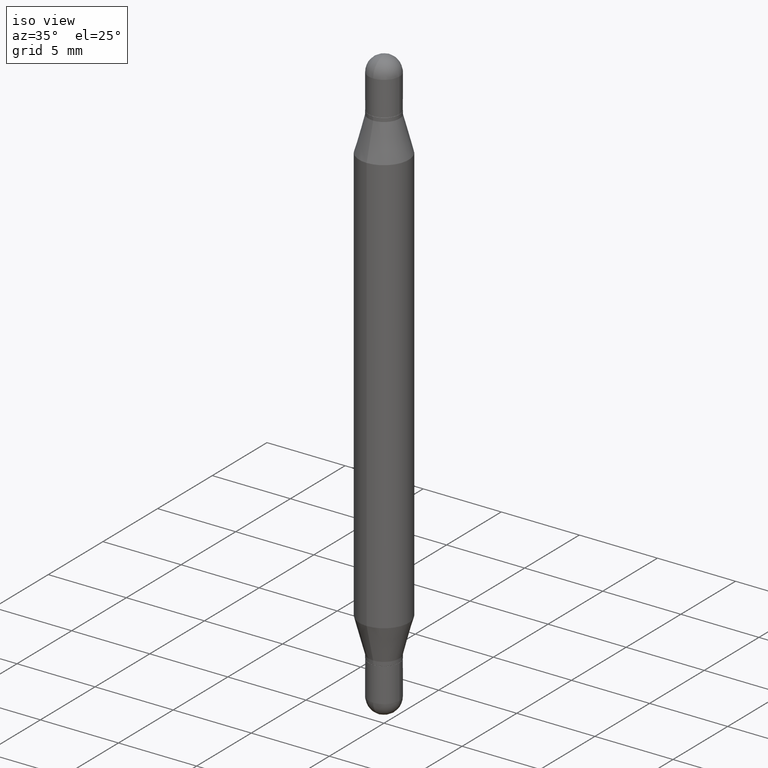
[diagram: clean part render]
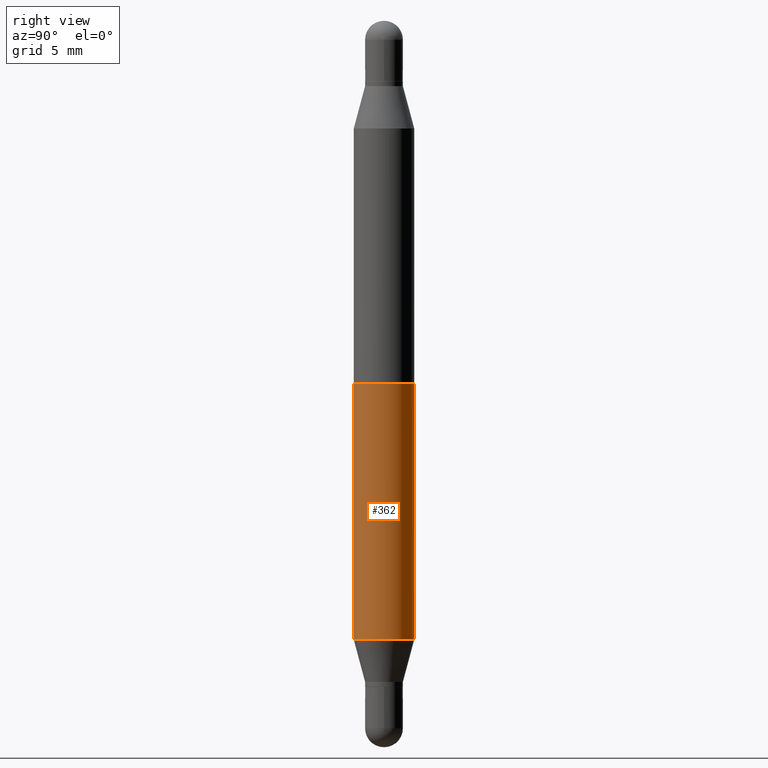
[diagram: tour spotlight — one face highlighted and labeled with its STEP entity id]
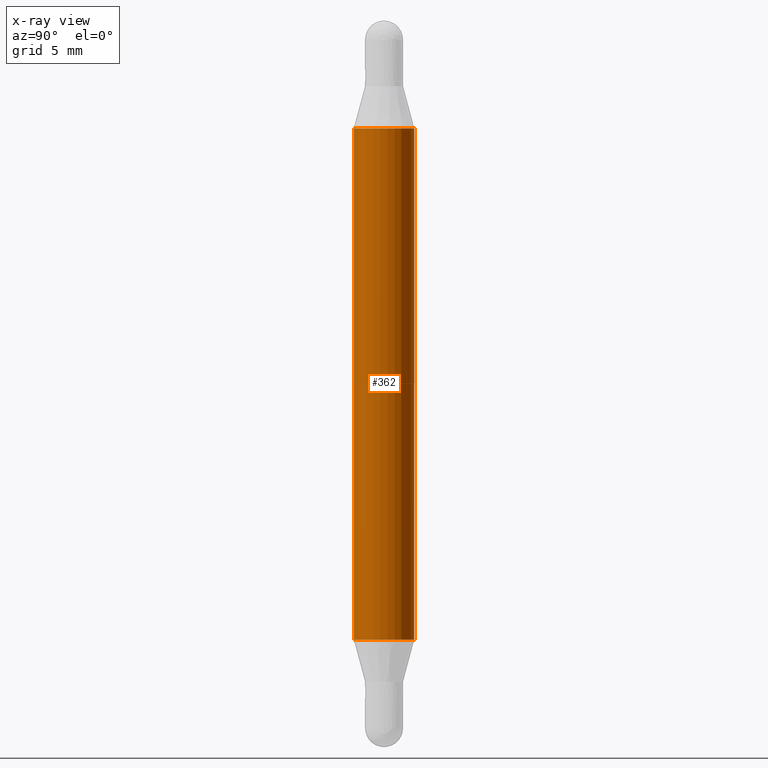
[diagram: x-ray of the same camera — body ghosted, this tour face saturated]
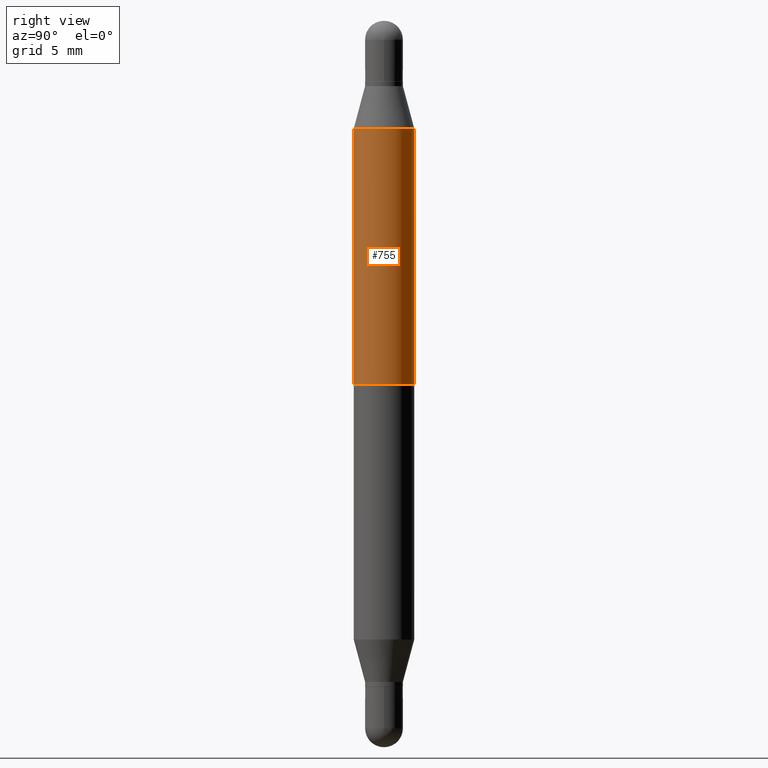
[diagram: tour spotlight — one face highlighted and labeled with its STEP entity id]
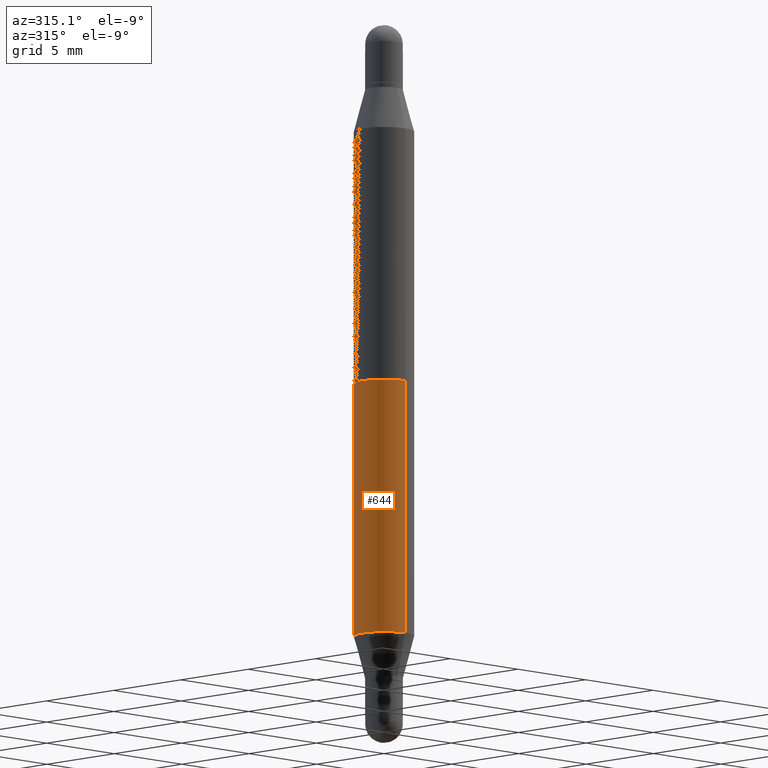
[diagram: tour spotlight — one face highlighted and labeled with its STEP entity id]
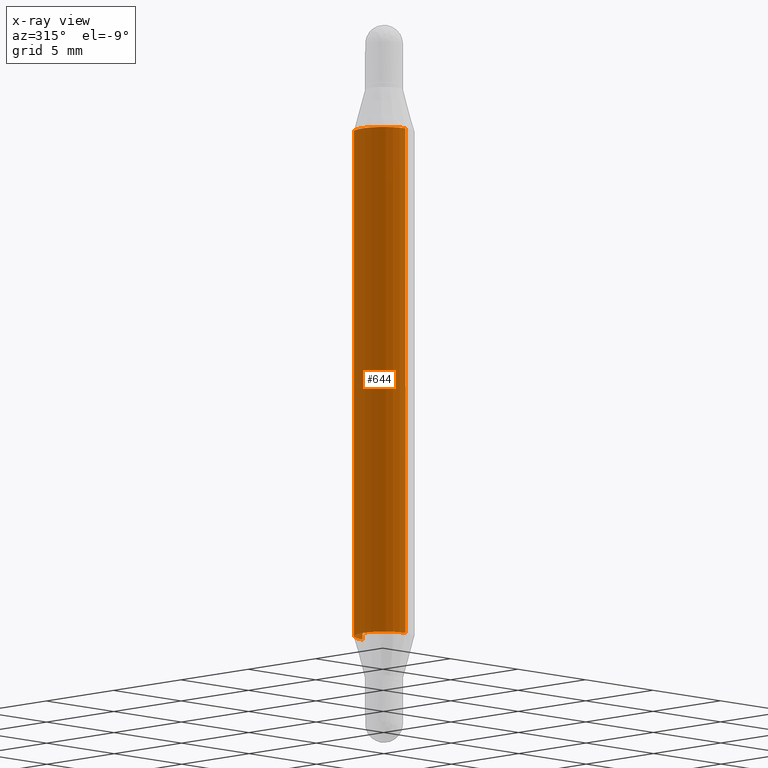
[diagram: x-ray of the same camera — body ghosted, this tour face saturated]
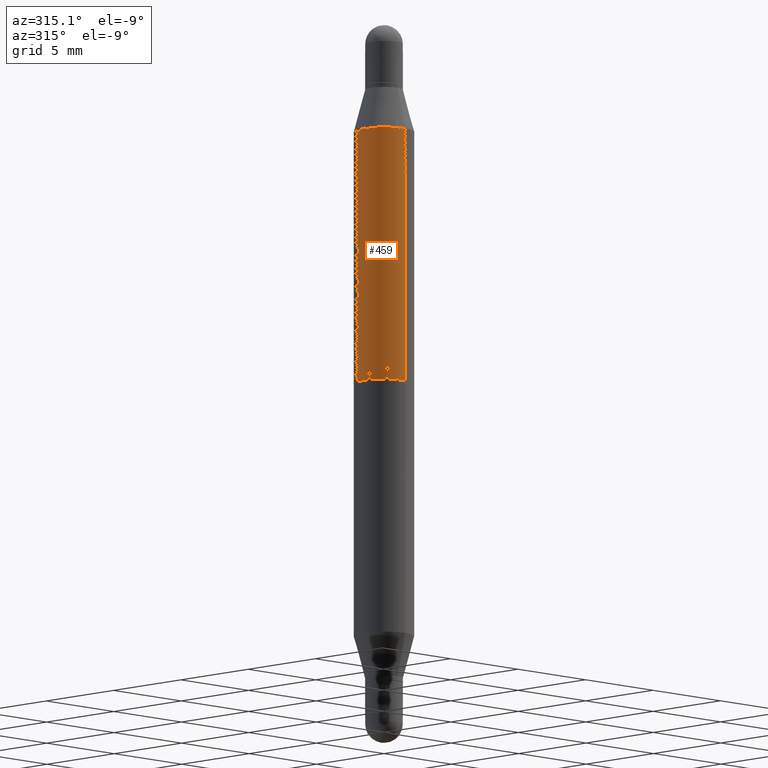
[diagram: tour spotlight — one face highlighted and labeled with its STEP entity id]
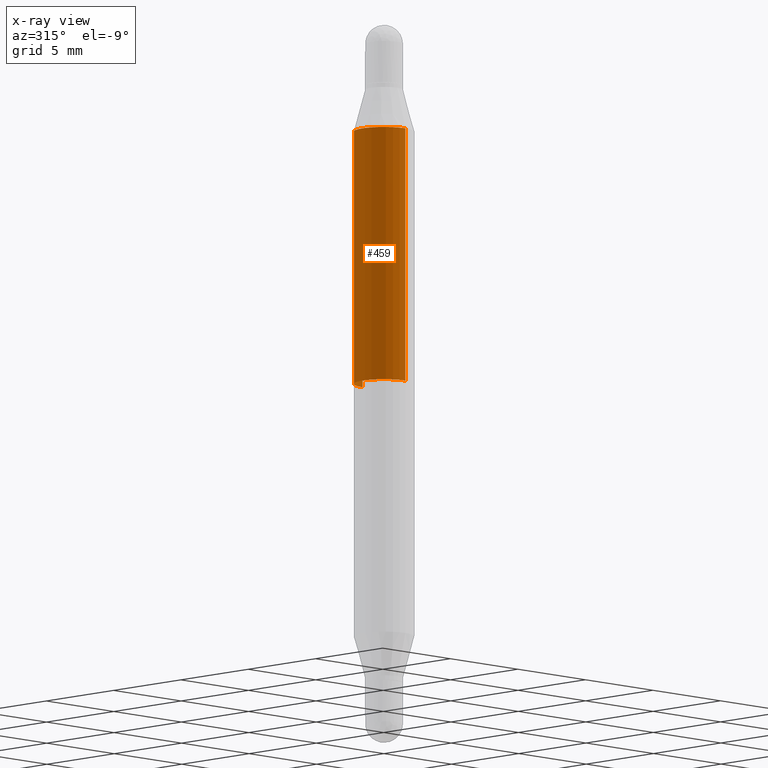
[diagram: x-ray of the same camera — body ghosted, this tour face saturated]
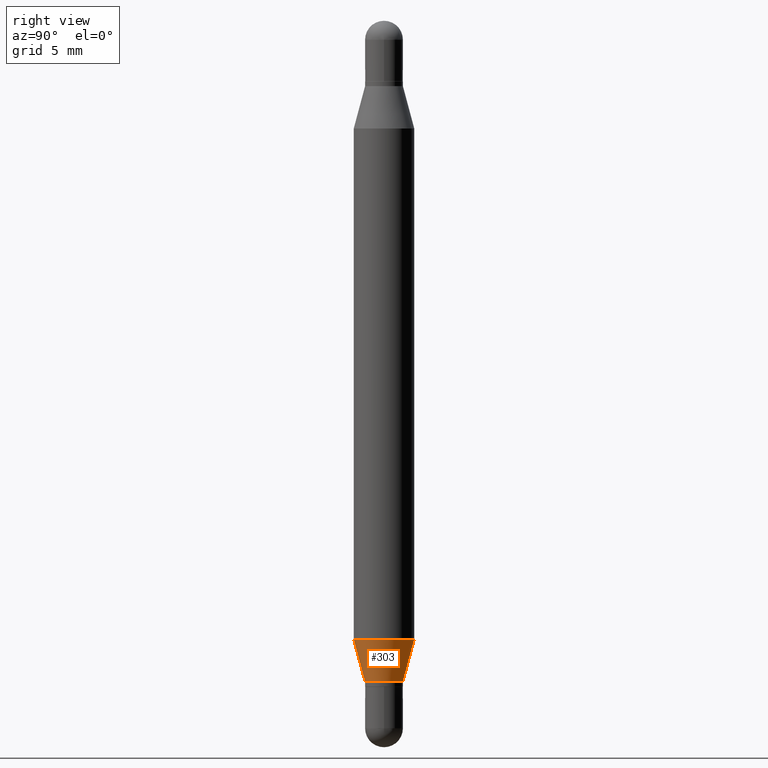
[diagram: tour spotlight — one face highlighted and labeled with its STEP entity id]
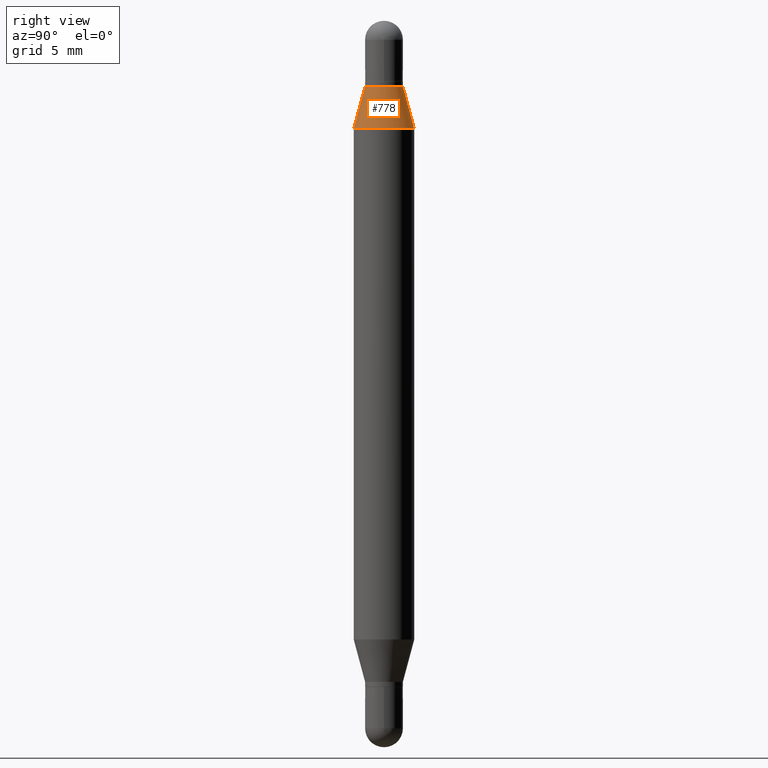
[diagram: tour spotlight — one face highlighted and labeled with its STEP entity id]
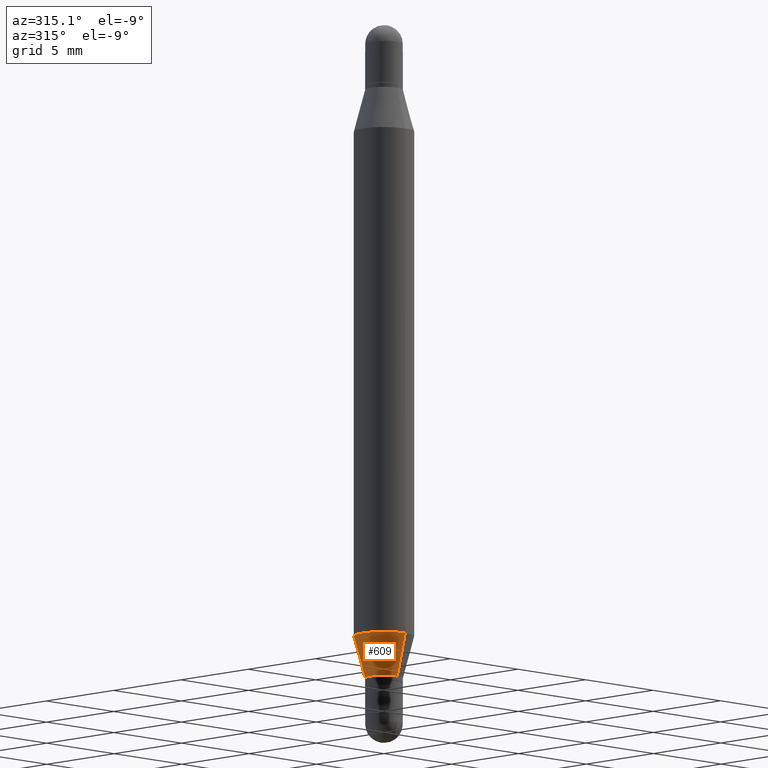
[diagram: tour spotlight — one face highlighted and labeled with its STEP entity id]
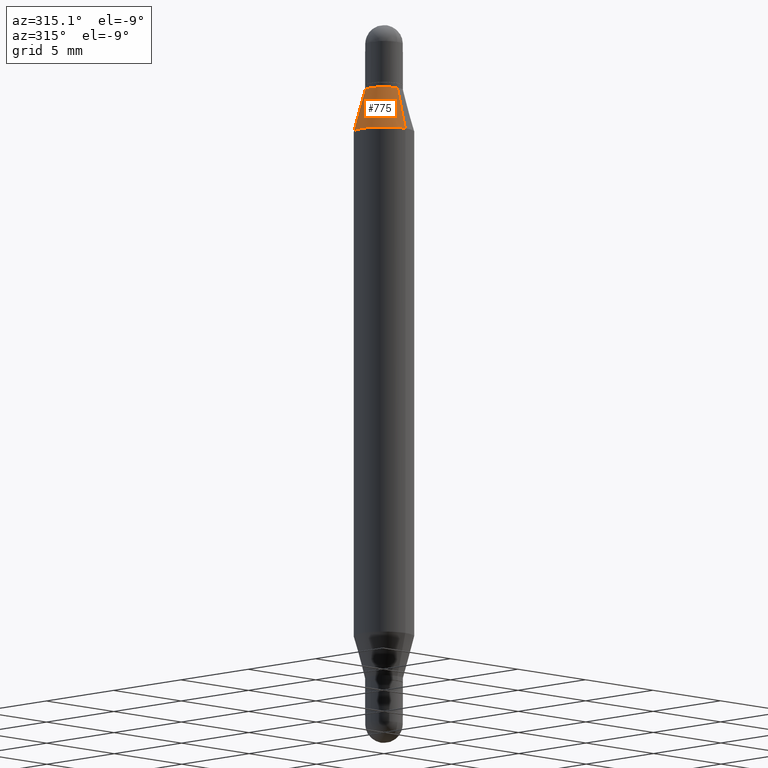
[diagram: tour spotlight — one face highlighted and labeled with its STEP entity id]
A machine part: a face-by-face anatomy tour. The part has 41 B-rep faces; the first image is the clean iso view, then the 8 largest visible faces are spotlighted one at a time (largest first), each with its STEP entity span.

Face 1 — right view, entity #362. An x-ray twin of the same camera follows (body ghosted, this face saturated) — the face is partly hidden behind the body. In plain terms, the highlighted cylindrical surface (edge-blend (fillet) strip) has radius 1.5875 mm, axis along (-0, -0, -1).
Definition (entity closure, byte-faithful):
#1 = EDGE_CURVE ( 'NONE', #389, #839, #751, .T. ) ;
#51 = ORIENTED_EDGE ( 'NONE', *, *, #498, .F. ) ;
#117 = AXIS2_PLACEMENT_3D ( 'NONE', #212, #302, #1100 ) ;
#125 = CARTESIAN_POINT ( 'NONE',  ( 4.287811248607390637E-16, 0.06249999999999554523, -1.277483408562510192 ) ) ;
#206 = LINE ( 'NONE', #1056, #719 ) ;
#212 = CARTESIAN_POINT ( 'NONE',  ( 0.000000000000000000, -5.228321854365729194E-15, -1.499999999999999556 ) ) ;
#240 = CARTESIAN_POINT ( 'NONE',  ( 3.124066175503445420E-29, -4.460280340114615090E-15, -1.277483408562509970 ) ) ;
#249 = ORIENTED_EDGE ( 'NONE', *, *, #1, .T. ) ;
#296 = VERTEX_POINT ( 'NONE', #995 ) ;
#301 = CARTESIAN_POINT ( 'NONE',  ( 4.287811248607206733E-16, 0.06249999999999477501, -1.499999999999999778 ) ) ;
#302 = DIRECTION ( 'NONE',  ( -2.445484735507293493E-29, -3.479637278673797391E-15, -1.000000000000000000 ) ) ;
#324 = FACE_OUTER_BOUND ( 'NONE', #366, .T. ) ;
#328 = CIRCLE ( 'NONE', #1111, 0.06250000000000000000 ) ;
#329 = AXIS2_PLACEMENT_3D ( 'NONE', #240, #487, #1099 ) ;
#352 = DIRECTION ( 'NONE',  ( -2.445484735507293493E-29, -3.479637278673797391E-15, -1.000000000000000000 ) ) ;
#362 = ADVANCED_FACE ( 'NONE', ( #324 ), #1073, .T. ) ;
#366 = EDGE_LOOP ( 'NONE', ( #993, #51, #855, #249 ) ) ;
#389 = VERTEX_POINT ( 'NONE', #988 ) ;
#487 = DIRECTION ( 'NONE',  ( -2.445484735507293493E-29, 3.491458527147176446E-15, 1.000000000000000000 ) ) ;
#495 = DIRECTION ( 'NONE',  ( 2.445484735507293493E-29, 3.479637278673797391E-15, 1.000000000000000000 ) ) ;
#498 = EDGE_CURVE ( 'NONE', #296, #835, #328, .T. ) ;
#594 = EDGE_CURVE ( 'NONE', #296, #389, #206, .T. ) ;
#635 = DIRECTION ( 'NONE',  ( -2.445484735507293493E-29, -3.479637278673797391E-15, -1.000000000000000000 ) ) ;
#677 = DIRECTION ( 'NONE',  ( -6.982962677686265922E-15, -1.000000000000000000, 3.278217592397115862E-15 ) ) ;
#719 = VECTOR ( 'NONE', #352, 39.37007874015748143 ) ;
#720 = LINE ( 'NONE', #301, #1053 ) ;
#751 = CIRCLE ( 'NONE', #329, 0.06250000000000000000 ) ;
#767 = CARTESIAN_POINT ( 'NONE',  ( 3.124066175503445420E-29, -7.831429630443502139E-16, -0.2225165914374896692 ) ) ;
#822 = EDGE_CURVE ( 'NONE', #835, #839, #720, .T. ) ;
#835 = VERTEX_POINT ( 'NONE', #898 ) ;
#839 = VERTEX_POINT ( 'NONE', #125 ) ;
#855 = ORIENTED_EDGE ( 'NONE', *, *, #594, .T. ) ;
#898 = CARTESIAN_POINT ( 'NONE',  ( 4.287811248607519320E-16, 0.06249999999999921590, -0.2225165914374898912 ) ) ;
#988 = CARTESIAN_POINT ( 'NONE',  ( -4.364351673553603615E-16, -0.06250000000000445477, -1.277483408562509526 ) ) ;
#993 = ORIENTED_EDGE ( 'NONE', *, *, #822, .F. ) ;
#995 = CARTESIAN_POINT ( 'NONE',  ( -4.364351673553603122E-16, -0.06250000000000079103, -0.2225165914374894749 ) ) ;
#1053 = VECTOR ( 'NONE', #635, 39.37007874015748143 ) ;
#1056 = CARTESIAN_POINT ( 'NONE',  ( -4.364351673553916201E-16, -0.06250000000000521805, -1.499999999999999334 ) ) ;
#1073 = CYLINDRICAL_SURFACE ( 'NONE', #117, 0.06250000000000000000 ) ;
#1099 = DIRECTION ( 'NONE',  ( -6.982962677686265922E-15, -1.000000000000000000, 4.370956789862821150E-15 ) ) ;
#1100 = DIRECTION ( 'NONE',  ( -6.982962677686265922E-15, -1.000000000000000000, 4.370956789862821150E-15 ) ) ;
#1111 = AXIS2_PLACEMENT_3D ( 'NONE', #767, #495, #677 ) ;

Face 2 — right view, entity #755. In plain terms, the highlighted cylindrical surface (edge-blend (fillet) strip) has radius 1.5875 mm, axis along (-0, -0, -1).
Definition (entity closure, byte-faithful):
#89 = VERTEX_POINT ( 'NONE', #664 ) ;
#106 = CARTESIAN_POINT ( 'NONE',  ( 4.287811248607519320E-16, 0.06249999999999921590, -0.2225165914374898912 ) ) ;
#126 = DIRECTION ( 'NONE',  ( -6.982962677686265922E-15, -1.000000000000000000, 3.278217592397115862E-15 ) ) ;
#132 = AXIS2_PLACEMENT_3D ( 'NONE', #1110, #944, #246 ) ;
#150 = ORIENTED_EDGE ( 'NONE', *, *, #599, .T. ) ;
#158 = VERTEX_POINT ( 'NONE', #106 ) ;
#209 = CIRCLE ( 'NONE', #132, 0.06250000000000000000 ) ;
#226 = AXIS2_PLACEMENT_3D ( 'NONE', #809, #308, #569 ) ;
#246 = DIRECTION ( 'NONE',  ( 0.000000000000000000, 1.000000000000000000, -4.370956789862821150E-15 ) ) ;
#278 = VECTOR ( 'NONE', #687, 39.37007874015748143 ) ;
#289 = CARTESIAN_POINT ( 'NONE',  ( -4.364351673553916201E-16, -0.06250000000000521805, -1.499999999999999334 ) ) ;
#308 = DIRECTION ( 'NONE',  ( -2.445484735507293493E-29, -3.479637278673797391E-15, -1.000000000000000000 ) ) ;
#310 = CARTESIAN_POINT ( 'NONE',  ( 3.124066175503445420E-29, -7.831429630443502139E-16, -0.2225165914374896692 ) ) ;
#359 = EDGE_CURVE ( 'NONE', #1009, #158, #1055, .T. ) ;
#392 = EDGE_CURVE ( 'NONE', #158, #89, #461, .T. ) ;
#461 = LINE ( 'NONE', #824, #561 ) ;
#546 = DIRECTION ( 'NONE',  ( -2.445484735507293493E-29, -3.479637278673797391E-15, -1.000000000000000000 ) ) ;
#549 = CARTESIAN_POINT ( 'NONE',  ( -4.364351673553731805E-16, -0.06250000000000262290, -0.7499999999999995559 ) ) ;
#551 = EDGE_LOOP ( 'NONE', ( #735, #1095, #150, #700 ) ) ;
#561 = VECTOR ( 'NONE', #546, 39.37007874015748143 ) ;
#569 = DIRECTION ( 'NONE',  ( -6.982962677686265922E-15, -1.000000000000000000, 4.370956789862821150E-15 ) ) ;
#599 = EDGE_CURVE ( 'NONE', #1009, #818, #799, .T. ) ;
#664 = CARTESIAN_POINT ( 'NONE',  ( 4.287811248607454732E-16, 0.06249999999999737710, -0.7500000000000001110 ) ) ;
#687 = DIRECTION ( 'NONE',  ( -2.445484735507293493E-29, -3.479637278673797391E-15, -1.000000000000000000 ) ) ;
#700 = ORIENTED_EDGE ( 'NONE', *, *, #985, .F. ) ;
#735 = ORIENTED_EDGE ( 'NONE', *, *, #392, .F. ) ;
#755 = ADVANCED_FACE ( 'NONE', ( #821 ), #1092, .T. ) ;
#799 = LINE ( 'NONE', #289, #278 ) ;
#809 = CARTESIAN_POINT ( 'NONE',  ( 0.000000000000000000, -5.228321854365729194E-15, -1.499999999999999556 ) ) ;
#818 = VERTEX_POINT ( 'NONE', #549 ) ;
#821 = FACE_OUTER_BOUND ( 'NONE', #551, .T. ) ;
#824 = CARTESIAN_POINT ( 'NONE',  ( 4.287811248607206733E-16, 0.06249999999999477501, -1.499999999999999778 ) ) ;
#828 = CARTESIAN_POINT ( 'NONE',  ( -4.364351673553603122E-16, -0.06250000000000079103, -0.2225165914374894749 ) ) ;
#899 = DIRECTION ( 'NONE',  ( 2.445484735507293493E-29, 3.479637278673797391E-15, 1.000000000000000000 ) ) ;
#944 = DIRECTION ( 'NONE',  ( -0.000000000000000000, -3.485547902910486918E-15, -1.000000000000000000 ) ) ;
#985 = EDGE_CURVE ( 'NONE', #89, #818, #209, .T. ) ;
#987 = AXIS2_PLACEMENT_3D ( 'NONE', #310, #899, #126 ) ;
#1009 = VERTEX_POINT ( 'NONE', #828 ) ;
#1055 = CIRCLE ( 'NONE', #987, 0.06250000000000000000 ) ;
#1092 = CYLINDRICAL_SURFACE ( 'NONE', #226, 0.06250000000000000000 ) ;
#1095 = ORIENTED_EDGE ( 'NONE', *, *, #359, .F. ) ;
#1110 = CARTESIAN_POINT ( 'NONE',  ( 1.834113551630469349E-29, -2.618593895360381940E-15, -0.7499999999999997780 ) ) ;

Face 3 — auxiliary view, entity #644. An x-ray twin of the same camera follows (body ghosted, this face saturated) — the face is partly hidden behind the body. In plain terms, the highlighted cylindrical surface (edge-blend (fillet) strip) has radius 1.5875 mm, axis along (-0, -0, -1).
Definition (entity closure, byte-faithful):
#6 = DIRECTION ( 'NONE',  ( -6.982962677686265922E-15, -1.000000000000000000, 4.370956789862821150E-15 ) ) ;
#115 = AXIS2_PLACEMENT_3D ( 'NONE', #532, #623, #711 ) ;
#125 = CARTESIAN_POINT ( 'NONE',  ( 4.287811248607390637E-16, 0.06249999999999554523, -1.277483408562510192 ) ) ;
#206 = LINE ( 'NONE', #1056, #719 ) ;
#296 = VERTEX_POINT ( 'NONE', #995 ) ;
#301 = CARTESIAN_POINT ( 'NONE',  ( 4.287811248607206733E-16, 0.06249999999999477501, -1.499999999999999778 ) ) ;
#316 = ORIENTED_EDGE ( 'NONE', *, *, #1022, .F. ) ;
#343 = ORIENTED_EDGE ( 'NONE', *, *, #594, .F. ) ;
#352 = DIRECTION ( 'NONE',  ( -2.445484735507293493E-29, -3.479637278673797391E-15, -1.000000000000000000 ) ) ;
#363 = FACE_OUTER_BOUND ( 'NONE', #907, .T. ) ;
#389 = VERTEX_POINT ( 'NONE', #988 ) ;
#405 = DIRECTION ( 'NONE',  ( 2.445484735507293493E-29, 3.479637278673797391E-15, 1.000000000000000000 ) ) ;
#508 = AXIS2_PLACEMENT_3D ( 'NONE', #765, #945, #6 ) ;
#532 = CARTESIAN_POINT ( 'NONE',  ( 0.000000000000000000, -5.228321854365729194E-15, -1.499999999999999556 ) ) ;
#538 = EDGE_CURVE ( 'NONE', #839, #389, #627, .T. ) ;
#575 = CARTESIAN_POINT ( 'NONE',  ( 3.124066175503445420E-29, -7.831429630443502139E-16, -0.2225165914374896692 ) ) ;
#594 = EDGE_CURVE ( 'NONE', #296, #389, #206, .T. ) ;
#623 = DIRECTION ( 'NONE',  ( -2.445484735507293493E-29, -3.479637278673797391E-15, -1.000000000000000000 ) ) ;
#627 = CIRCLE ( 'NONE', #508, 0.06250000000000000000 ) ;
#635 = DIRECTION ( 'NONE',  ( -2.445484735507293493E-29, -3.479637278673797391E-15, -1.000000000000000000 ) ) ;
#644 = ADVANCED_FACE ( 'NONE', ( #363 ), #706, .T. ) ;
#706 = CYLINDRICAL_SURFACE ( 'NONE', #115, 0.06250000000000000000 ) ;
#711 = DIRECTION ( 'NONE',  ( -6.982962677686265922E-15, -1.000000000000000000, 4.370956789862821150E-15 ) ) ;
#719 = VECTOR ( 'NONE', #352, 39.37007874015748143 ) ;
#720 = LINE ( 'NONE', #301, #1053 ) ;
#750 = ORIENTED_EDGE ( 'NONE', *, *, #822, .T. ) ;
#765 = CARTESIAN_POINT ( 'NONE',  ( 3.124066175503445420E-29, -4.460280340114615090E-15, -1.277483408562509970 ) ) ;
#813 = ORIENTED_EDGE ( 'NONE', *, *, #538, .T. ) ;
#822 = EDGE_CURVE ( 'NONE', #835, #839, #720, .T. ) ;
#835 = VERTEX_POINT ( 'NONE', #898 ) ;
#839 = VERTEX_POINT ( 'NONE', #125 ) ;
#898 = CARTESIAN_POINT ( 'NONE',  ( 4.287811248607519320E-16, 0.06249999999999921590, -0.2225165914374898912 ) ) ;
#904 = CIRCLE ( 'NONE', #1093, 0.06250000000000000000 ) ;
#907 = EDGE_LOOP ( 'NONE', ( #316, #750, #813, #343 ) ) ;
#927 = DIRECTION ( 'NONE',  ( -6.982962677686265922E-15, -1.000000000000000000, 3.278217592397115862E-15 ) ) ;
#945 = DIRECTION ( 'NONE',  ( -2.445484735507293493E-29, 3.491458527147176446E-15, 1.000000000000000000 ) ) ;
#988 = CARTESIAN_POINT ( 'NONE',  ( -4.364351673553603615E-16, -0.06250000000000445477, -1.277483408562509526 ) ) ;
#995 = CARTESIAN_POINT ( 'NONE',  ( -4.364351673553603122E-16, -0.06250000000000079103, -0.2225165914374894749 ) ) ;
#1022 = EDGE_CURVE ( 'NONE', #835, #296, #904, .T. ) ;
#1053 = VECTOR ( 'NONE', #635, 39.37007874015748143 ) ;
#1056 = CARTESIAN_POINT ( 'NONE',  ( -4.364351673553916201E-16, -0.06250000000000521805, -1.499999999999999334 ) ) ;
#1093 = AXIS2_PLACEMENT_3D ( 'NONE', #575, #405, #927 ) ;

Face 4 — auxiliary view, entity #459. An x-ray twin of the same camera follows (body ghosted, this face saturated) — the face is partly hidden behind the body. In plain terms, the highlighted cylindrical surface (edge-blend (fillet) strip) has radius 1.5875 mm, axis along (-0, -0, -1).
Definition (entity closure, byte-faithful):
#62 = ORIENTED_EDGE ( 'NONE', *, *, #576, .F. ) ;
#89 = VERTEX_POINT ( 'NONE', #664 ) ;
#106 = CARTESIAN_POINT ( 'NONE',  ( 4.287811248607519320E-16, 0.06249999999999921590, -0.2225165914374898912 ) ) ;
#109 = DIRECTION ( 'NONE',  ( -0.000000000000000000, -3.485547902910486918E-15, -1.000000000000000000 ) ) ;
#135 = CIRCLE ( 'NONE', #650, 0.06250000000000000000 ) ;
#151 = ORIENTED_EDGE ( 'NONE', *, *, #599, .F. ) ;
#155 = CARTESIAN_POINT ( 'NONE',  ( 0.000000000000000000, -5.228321854365729194E-15, -1.499999999999999556 ) ) ;
#158 = VERTEX_POINT ( 'NONE', #106 ) ;
#183 = CARTESIAN_POINT ( 'NONE',  ( 1.834113551630469349E-29, -2.618593895360381940E-15, -0.7499999999999997780 ) ) ;
#248 = CYLINDRICAL_SURFACE ( 'NONE', #971, 0.06250000000000000000 ) ;
#269 = EDGE_CURVE ( 'NONE', #158, #1009, #135, .T. ) ;
#278 = VECTOR ( 'NONE', #687, 39.37007874015748143 ) ;
#289 = CARTESIAN_POINT ( 'NONE',  ( -4.364351673553916201E-16, -0.06250000000000521805, -1.499999999999999334 ) ) ;
#326 = ORIENTED_EDGE ( 'NONE', *, *, #392, .T. ) ;
#335 = FACE_OUTER_BOUND ( 'NONE', #463, .T. ) ;
#392 = EDGE_CURVE ( 'NONE', #158, #89, #461, .T. ) ;
#411 = DIRECTION ( 'NONE',  ( -2.445484735507293493E-29, -3.479637278673797391E-15, -1.000000000000000000 ) ) ;
#444 = CARTESIAN_POINT ( 'NONE',  ( 3.124066175503445420E-29, -7.831429630443502139E-16, -0.2225165914374896692 ) ) ;
#459 = ADVANCED_FACE ( 'NONE', ( #335 ), #248, .T. ) ;
#461 = LINE ( 'NONE', #824, #561 ) ;
#463 = EDGE_LOOP ( 'NONE', ( #625, #326, #62, #151 ) ) ;
#546 = DIRECTION ( 'NONE',  ( -2.445484735507293493E-29, -3.479637278673797391E-15, -1.000000000000000000 ) ) ;
#549 = CARTESIAN_POINT ( 'NONE',  ( -4.364351673553731805E-16, -0.06250000000000262290, -0.7499999999999995559 ) ) ;
#561 = VECTOR ( 'NONE', #546, 39.37007874015748143 ) ;
#576 = EDGE_CURVE ( 'NONE', #818, #89, #759, .T. ) ;
#599 = EDGE_CURVE ( 'NONE', #1009, #818, #799, .T. ) ;
#625 = ORIENTED_EDGE ( 'NONE', *, *, #269, .F. ) ;
#650 = AXIS2_PLACEMENT_3D ( 'NONE', #444, #696, #1046 ) ;
#664 = CARTESIAN_POINT ( 'NONE',  ( 4.287811248607454732E-16, 0.06249999999999737710, -0.7500000000000001110 ) ) ;
#687 = DIRECTION ( 'NONE',  ( -2.445484735507293493E-29, -3.479637278673797391E-15, -1.000000000000000000 ) ) ;
#696 = DIRECTION ( 'NONE',  ( 2.445484735507293493E-29, 3.479637278673797391E-15, 1.000000000000000000 ) ) ;
#757 = DIRECTION ( 'NONE',  ( -6.982962677686265922E-15, -1.000000000000000000, 4.370956789862821150E-15 ) ) ;
#759 = CIRCLE ( 'NONE', #791, 0.06250000000000000000 ) ;
#791 = AXIS2_PLACEMENT_3D ( 'NONE', #183, #109, #794 ) ;
#794 = DIRECTION ( 'NONE',  ( 0.000000000000000000, 1.000000000000000000, -4.370956789862821150E-15 ) ) ;
#799 = LINE ( 'NONE', #289, #278 ) ;
#818 = VERTEX_POINT ( 'NONE', #549 ) ;
#824 = CARTESIAN_POINT ( 'NONE',  ( 4.287811248607206733E-16, 0.06249999999999477501, -1.499999999999999778 ) ) ;
#828 = CARTESIAN_POINT ( 'NONE',  ( -4.364351673553603122E-16, -0.06250000000000079103, -0.2225165914374894749 ) ) ;
#971 = AXIS2_PLACEMENT_3D ( 'NONE', #155, #411, #757 ) ;
#1009 = VERTEX_POINT ( 'NONE', #828 ) ;
#1046 = DIRECTION ( 'NONE',  ( -6.982962677686265922E-15, -1.000000000000000000, 3.278217592397115862E-15 ) ) ;

Face 5 — right view, entity #303. In plain terms, the highlighted conical surface has half-angle 15 deg.
Definition (entity closure, byte-faithful):
#1 = EDGE_CURVE ( 'NONE', #389, #839, #751, .T. ) ;
#41 = EDGE_CURVE ( 'NONE', #846, #839, #739, .T. ) ;
#46 = ORIENTED_EDGE ( 'NONE', *, *, #41, .T. ) ;
#53 = ORIENTED_EDGE ( 'NONE', *, *, #1096, .F. ) ;
#66 = CARTESIAN_POINT ( 'NONE',  ( 2.774669383143518701E-16, 0.03904999999999515803, -1.364999999999999991 ) ) ;
#78 = ORIENTED_EDGE ( 'NONE', *, *, #201, .T. ) ;
#87 = CARTESIAN_POINT ( 'NONE',  ( -2.726846925636147479E-16, -0.03905000000000468513, -1.364999999999999991 ) ) ;
#98 = CARTESIAN_POINT ( 'NONE',  ( 3.338086663967455998E-29, -4.765840889555895754E-15, -1.364999999999999991 ) ) ;
#124 = LINE ( 'NONE', #779, #298 ) ;
#125 = CARTESIAN_POINT ( 'NONE',  ( 4.287811248607390637E-16, 0.06249999999999554523, -1.277483408562510192 ) ) ;
#200 = VECTOR ( 'NONE', #393, 39.37007874015748143 ) ;
#201 = EDGE_CURVE ( 'NONE', #421, #846, #438, .T. ) ;
#204 = DIRECTION ( 'NONE',  ( -6.982962677686265133E-15, -1.000000000000000000, 0.000000000000000000 ) ) ;
#240 = CARTESIAN_POINT ( 'NONE',  ( 3.124066175503445420E-29, -4.460280340114615090E-15, -1.277483408562509970 ) ) ;
#298 = VECTOR ( 'NONE', #439, 39.37007874015748143 ) ;
#303 = ADVANCED_FACE ( 'NONE', ( #1087 ), #1040, .T. ) ;
#314 = DIRECTION ( 'NONE',  ( -6.982962677686265133E-15, -1.000000000000000000, 0.000000000000000000 ) ) ;
#329 = AXIS2_PLACEMENT_3D ( 'NONE', #240, #487, #1099 ) ;
#389 = VERTEX_POINT ( 'NONE', #988 ) ;
#393 = DIRECTION ( 'NONE',  ( 1.839019923739600315E-15, 0.2588190451025249583, 0.9659258262890670910 ) ) ;
#421 = VERTEX_POINT ( 'NONE', #87 ) ;
#422 = AXIS2_PLACEMENT_3D ( 'NONE', #98, #437, #204 ) ;
#437 = DIRECTION ( 'NONE',  ( -2.445484735507293493E-29, 3.491458527147176446E-15, 1.000000000000000000 ) ) ;
#438 = CIRCLE ( 'NONE', #422, 0.03904999999999992505 ) ;
#439 = DIRECTION ( 'NONE',  ( -1.807323732225330139E-15, -0.2588190451025181860, 0.9659258262890689783 ) ) ;
#473 = CARTESIAN_POINT ( 'NONE',  ( 2.774669383143521166E-16, 0.03904999999999515803, -1.364999999999999991 ) ) ;
#487 = DIRECTION ( 'NONE',  ( -2.445484735507293493E-29, 3.491458527147176446E-15, 1.000000000000000000 ) ) ;
#739 = LINE ( 'NONE', #66, #200 ) ;
#749 = CARTESIAN_POINT ( 'NONE',  ( 3.338086663967455998E-29, -4.765840889555895754E-15, -1.364999999999999991 ) ) ;
#751 = CIRCLE ( 'NONE', #329, 0.06250000000000000000 ) ;
#779 = CARTESIAN_POINT ( 'NONE',  ( -2.726846925636147479E-16, -0.03905000000000468513, -1.364999999999999991 ) ) ;
#839 = VERTEX_POINT ( 'NONE', #125 ) ;
#846 = VERTEX_POINT ( 'NONE', #473 ) ;
#892 = DIRECTION ( 'NONE',  ( -2.445484735507293493E-29, 3.491458527147176446E-15, 1.000000000000000000 ) ) ;
#894 = EDGE_LOOP ( 'NONE', ( #78, #46, #1108, #53 ) ) ;
#910 = AXIS2_PLACEMENT_3D ( 'NONE', #749, #892, #314 ) ;
#988 = CARTESIAN_POINT ( 'NONE',  ( -4.364351673553603615E-16, -0.06250000000000445477, -1.277483408562509526 ) ) ;
#1040 = CONICAL_SURFACE ( 'NONE', #910, 0.03904999999999992505, 0.2617993877991502960 ) ;
#1087 = FACE_OUTER_BOUND ( 'NONE', #894, .T. ) ;
#1096 = EDGE_CURVE ( 'NONE', #421, #389, #124, .T. ) ;
#1099 = DIRECTION ( 'NONE',  ( -6.982962677686265922E-15, -1.000000000000000000, 4.370956789862821150E-15 ) ) ;
#1108 = ORIENTED_EDGE ( 'NONE', *, *, #1, .F. ) ;

Face 6 — right view, entity #778. In plain terms, the highlighted conical surface has half-angle 15 deg.
Definition (entity closure, byte-faithful):
#63 = CARTESIAN_POINT ( 'NONE',  ( 3.338086663967455998E-29, -4.786169689759957599E-16, -0.1349999999999995093 ) ) ;
#65 = CARTESIAN_POINT ( 'NONE',  ( -2.726846925636147479E-16, -0.03905000000000039689, -0.1349999999999993705 ) ) ;
#102 = EDGE_CURVE ( 'NONE', #1014, #649, #841, .T. ) ;
#106 = CARTESIAN_POINT ( 'NONE',  ( 4.287811248607519320E-16, 0.06249999999999921590, -0.2225165914374898912 ) ) ;
#126 = DIRECTION ( 'NONE',  ( -6.982962677686265922E-15, -1.000000000000000000, 3.278217592397115862E-15 ) ) ;
#158 = VERTEX_POINT ( 'NONE', #106 ) ;
#161 = AXIS2_PLACEMENT_3D ( 'NONE', #63, #831, #341 ) ;
#294 = FACE_OUTER_BOUND ( 'NONE', #814, .T. ) ;
#310 = CARTESIAN_POINT ( 'NONE',  ( 3.124066175503445420E-29, -7.831429630443502139E-16, -0.2225165914374896692 ) ) ;
#341 = DIRECTION ( 'NONE',  ( -6.982962677686265133E-15, -1.000000000000000000, 3.497884755011867510E-15 ) ) ;
#359 = EDGE_CURVE ( 'NONE', #1009, #158, #1055, .T. ) ;
#371 = CARTESIAN_POINT ( 'NONE',  ( 3.338086663967455998E-29, -4.786169689759957599E-16, -0.1349999999999995093 ) ) ;
#434 = AXIS2_PLACEMENT_3D ( 'NONE', #371, #562, #1086 ) ;
#435 = CARTESIAN_POINT ( 'NONE',  ( 2.679024468130112883E-16, 0.03904999999999944627, -0.1349999999999996481 ) ) ;
#464 = CARTESIAN_POINT ( 'NONE',  ( -2.726846925636147479E-16, -0.03905000000000039689, -0.1349999999999993705 ) ) ;
#530 = ORIENTED_EDGE ( 'NONE', *, *, #102, .F. ) ;
#562 = DIRECTION ( 'NONE',  ( -2.445484735507293493E-29, -3.479637278673797391E-15, -1.000000000000000000 ) ) ;
#601 = LINE ( 'NONE', #1023, #886 ) ;
#608 = LINE ( 'NONE', #464, #1070 ) ;
#649 = VERTEX_POINT ( 'NONE', #435 ) ;
#718 = ORIENTED_EDGE ( 'NONE', *, *, #966, .F. ) ;
#778 = ADVANCED_FACE ( 'NONE', ( #294 ), #850, .T. ) ;
#796 = ORIENTED_EDGE ( 'NONE', *, *, #1104, .T. ) ;
#804 = ORIENTED_EDGE ( 'NONE', *, *, #359, .T. ) ;
#814 = EDGE_LOOP ( 'NONE', ( #718, #530, #796, #804 ) ) ;
#828 = CARTESIAN_POINT ( 'NONE',  ( -4.364351673553603122E-16, -0.06250000000000079103, -0.2225165914374894749 ) ) ;
#831 = DIRECTION ( 'NONE',  ( 2.445484735507293493E-29, 3.479637278673797391E-15, 1.000000000000000000 ) ) ;
#841 = CIRCLE ( 'NONE', #161, 0.03904999999999992505 ) ;
#850 = CONICAL_SURFACE ( 'NONE', #434, 0.03904999999999992505, 0.2617993877991502960 ) ;
#877 = DIRECTION ( 'NONE',  ( -1.807323732225330139E-15, -0.2588190451025249583, -0.9659258262890670910 ) ) ;
#886 = VECTOR ( 'NONE', #1105, 39.37007874015748143 ) ;
#899 = DIRECTION ( 'NONE',  ( 2.445484735507293493E-29, 3.479637278673797391E-15, 1.000000000000000000 ) ) ;
#966 = EDGE_CURVE ( 'NONE', #649, #158, #601, .T. ) ;
#987 = AXIS2_PLACEMENT_3D ( 'NONE', #310, #899, #126 ) ;
#1009 = VERTEX_POINT ( 'NONE', #828 ) ;
#1014 = VERTEX_POINT ( 'NONE', #65 ) ;
#1023 = CARTESIAN_POINT ( 'NONE',  ( 2.679024468130111404E-16, 0.03904999999999944627, -0.1349999999999996481 ) ) ;
#1055 = CIRCLE ( 'NONE', #987, 0.06250000000000000000 ) ;
#1070 = VECTOR ( 'NONE', #877, 39.37007874015748143 ) ;
#1086 = DIRECTION ( 'NONE',  ( -6.982962677686265133E-15, -1.000000000000000000, 3.497884755011867510E-15 ) ) ;
#1104 = EDGE_CURVE ( 'NONE', #1014, #1009, #608, .T. ) ;
#1105 = DIRECTION ( 'NONE',  ( 1.775627540710965300E-15, 0.2588190451025181860, -0.9659258262890689783 ) ) ;

Face 7 — auxiliary view, entity #609. In plain terms, the highlighted conical surface has half-angle 15 deg.
Definition (entity closure, byte-faithful):
#6 = DIRECTION ( 'NONE',  ( -6.982962677686265922E-15, -1.000000000000000000, 4.370956789862821150E-15 ) ) ;
#41 = EDGE_CURVE ( 'NONE', #846, #839, #739, .T. ) ;
#66 = CARTESIAN_POINT ( 'NONE',  ( 2.774669383143518701E-16, 0.03904999999999515803, -1.364999999999999991 ) ) ;
#87 = CARTESIAN_POINT ( 'NONE',  ( -2.726846925636147479E-16, -0.03905000000000468513, -1.364999999999999991 ) ) ;
#103 = AXIS2_PLACEMENT_3D ( 'NONE', #430, #578, #345 ) ;
#124 = LINE ( 'NONE', #779, #298 ) ;
#125 = CARTESIAN_POINT ( 'NONE',  ( 4.287811248607390637E-16, 0.06249999999999554523, -1.277483408562510192 ) ) ;
#200 = VECTOR ( 'NONE', #393, 39.37007874015748143 ) ;
#250 = ORIENTED_EDGE ( 'NONE', *, *, #41, .F. ) ;
#276 = CARTESIAN_POINT ( 'NONE',  ( 3.338086663967455998E-29, -4.765840889555895754E-15, -1.364999999999999991 ) ) ;
#298 = VECTOR ( 'NONE', #439, 39.37007874015748143 ) ;
#345 = DIRECTION ( 'NONE',  ( -6.982962677686265133E-15, -1.000000000000000000, 0.000000000000000000 ) ) ;
#389 = VERTEX_POINT ( 'NONE', #988 ) ;
#393 = DIRECTION ( 'NONE',  ( 1.839019923739600315E-15, 0.2588190451025249583, 0.9659258262890670910 ) ) ;
#421 = VERTEX_POINT ( 'NONE', #87 ) ;
#430 = CARTESIAN_POINT ( 'NONE',  ( 3.338086663967455998E-29, -4.765840889555895754E-15, -1.364999999999999991 ) ) ;
#439 = DIRECTION ( 'NONE',  ( -1.807323732225330139E-15, -0.2588190451025181860, 0.9659258262890689783 ) ) ;
#449 = DIRECTION ( 'NONE',  ( -2.445484735507293493E-29, 3.491458527147176446E-15, 1.000000000000000000 ) ) ;
#450 = AXIS2_PLACEMENT_3D ( 'NONE', #276, #449, #962 ) ;
#472 = CIRCLE ( 'NONE', #103, 0.03904999999999992505 ) ;
#473 = CARTESIAN_POINT ( 'NONE',  ( 2.774669383143521166E-16, 0.03904999999999515803, -1.364999999999999991 ) ) ;
#478 = EDGE_CURVE ( 'NONE', #846, #421, #472, .T. ) ;
#497 = ORIENTED_EDGE ( 'NONE', *, *, #1096, .T. ) ;
#508 = AXIS2_PLACEMENT_3D ( 'NONE', #765, #945, #6 ) ;
#538 = EDGE_CURVE ( 'NONE', #839, #389, #627, .T. ) ;
#578 = DIRECTION ( 'NONE',  ( -2.445484735507293493E-29, 3.491458527147176446E-15, 1.000000000000000000 ) ) ;
#609 = ADVANCED_FACE ( 'NONE', ( #620 ), #1052, .T. ) ;
#620 = FACE_OUTER_BOUND ( 'NONE', #1066, .T. ) ;
#627 = CIRCLE ( 'NONE', #508, 0.06250000000000000000 ) ;
#739 = LINE ( 'NONE', #66, #200 ) ;
#765 = CARTESIAN_POINT ( 'NONE',  ( 3.124066175503445420E-29, -4.460280340114615090E-15, -1.277483408562509970 ) ) ;
#779 = CARTESIAN_POINT ( 'NONE',  ( -2.726846925636147479E-16, -0.03905000000000468513, -1.364999999999999991 ) ) ;
#839 = VERTEX_POINT ( 'NONE', #125 ) ;
#846 = VERTEX_POINT ( 'NONE', #473 ) ;
#925 = ORIENTED_EDGE ( 'NONE', *, *, #538, .F. ) ;
#945 = DIRECTION ( 'NONE',  ( -2.445484735507293493E-29, 3.491458527147176446E-15, 1.000000000000000000 ) ) ;
#962 = DIRECTION ( 'NONE',  ( -6.982962677686265133E-15, -1.000000000000000000, 0.000000000000000000 ) ) ;
#988 = CARTESIAN_POINT ( 'NONE',  ( -4.364351673553603615E-16, -0.06250000000000445477, -1.277483408562509526 ) ) ;
#1001 = ORIENTED_EDGE ( 'NONE', *, *, #478, .T. ) ;
#1052 = CONICAL_SURFACE ( 'NONE', #450, 0.03904999999999992505, 0.2617993877991502960 ) ;
#1066 = EDGE_LOOP ( 'NONE', ( #250, #1001, #497, #925 ) ) ;
#1096 = EDGE_CURVE ( 'NONE', #421, #389, #124, .T. ) ;

Face 8 — auxiliary view, entity #775. In plain terms, the highlighted conical surface has half-angle 15 deg.
Definition (entity closure, byte-faithful):
#26 = AXIS2_PLACEMENT_3D ( 'NONE', #111, #1060, #28 ) ;
#28 = DIRECTION ( 'NONE',  ( -6.982962677686265133E-15, -1.000000000000000000, 3.497884755011867510E-15 ) ) ;
#65 = CARTESIAN_POINT ( 'NONE',  ( -2.726846925636147479E-16, -0.03905000000000039689, -0.1349999999999993705 ) ) ;
#106 = CARTESIAN_POINT ( 'NONE',  ( 4.287811248607519320E-16, 0.06249999999999921590, -0.2225165914374898912 ) ) ;
#111 = CARTESIAN_POINT ( 'NONE',  ( 3.338086663967455998E-29, -4.786169689759957599E-16, -0.1349999999999995093 ) ) ;
#121 = CARTESIAN_POINT ( 'NONE',  ( 3.338086663967455998E-29, -4.786169689759957599E-16, -0.1349999999999995093 ) ) ;
#134 = DIRECTION ( 'NONE',  ( -2.445484735507293493E-29, -3.479637278673797391E-15, -1.000000000000000000 ) ) ;
#135 = CIRCLE ( 'NONE', #650, 0.06250000000000000000 ) ;
#158 = VERTEX_POINT ( 'NONE', #106 ) ;
#170 = EDGE_CURVE ( 'NONE', #649, #1014, #385, .T. ) ;
#234 = DIRECTION ( 'NONE',  ( -6.982962677686265133E-15, -1.000000000000000000, 3.497884755011867510E-15 ) ) ;
#269 = EDGE_CURVE ( 'NONE', #158, #1009, #135, .T. ) ;
#381 = ORIENTED_EDGE ( 'NONE', *, *, #966, .T. ) ;
#385 = CIRCLE ( 'NONE', #26, 0.03904999999999992505 ) ;
#418 = CONICAL_SURFACE ( 'NONE', #984, 0.03904999999999992505, 0.2617993877991502960 ) ;
#435 = CARTESIAN_POINT ( 'NONE',  ( 2.679024468130112883E-16, 0.03904999999999944627, -0.1349999999999996481 ) ) ;
#444 = CARTESIAN_POINT ( 'NONE',  ( 3.124066175503445420E-29, -7.831429630443502139E-16, -0.2225165914374896692 ) ) ;
#464 = CARTESIAN_POINT ( 'NONE',  ( -2.726846925636147479E-16, -0.03905000000000039689, -0.1349999999999993705 ) ) ;
#514 = ORIENTED_EDGE ( 'NONE', *, *, #1104, .F. ) ;
#601 = LINE ( 'NONE', #1023, #886 ) ;
#608 = LINE ( 'NONE', #464, #1070 ) ;
#649 = VERTEX_POINT ( 'NONE', #435 ) ;
#650 = AXIS2_PLACEMENT_3D ( 'NONE', #444, #696, #1046 ) ;
#696 = DIRECTION ( 'NONE',  ( 2.445484735507293493E-29, 3.479637278673797391E-15, 1.000000000000000000 ) ) ;
#744 = ORIENTED_EDGE ( 'NONE', *, *, #269, .T. ) ;
#775 = ADVANCED_FACE ( 'NONE', ( #903 ), #418, .T. ) ;
#828 = CARTESIAN_POINT ( 'NONE',  ( -4.364351673553603122E-16, -0.06250000000000079103, -0.2225165914374894749 ) ) ;
#877 = DIRECTION ( 'NONE',  ( -1.807323732225330139E-15, -0.2588190451025249583, -0.9659258262890670910 ) ) ;
#886 = VECTOR ( 'NONE', #1105, 39.37007874015748143 ) ;
#903 = FACE_OUTER_BOUND ( 'NONE', #1074, .T. ) ;
#956 = ORIENTED_EDGE ( 'NONE', *, *, #170, .F. ) ;
#966 = EDGE_CURVE ( 'NONE', #649, #158, #601, .T. ) ;
#984 = AXIS2_PLACEMENT_3D ( 'NONE', #121, #134, #234 ) ;
#1009 = VERTEX_POINT ( 'NONE', #828 ) ;
#1014 = VERTEX_POINT ( 'NONE', #65 ) ;
#1023 = CARTESIAN_POINT ( 'NONE',  ( 2.679024468130111404E-16, 0.03904999999999944627, -0.1349999999999996481 ) ) ;
#1046 = DIRECTION ( 'NONE',  ( -6.982962677686265922E-15, -1.000000000000000000, 3.278217592397115862E-15 ) ) ;
#1060 = DIRECTION ( 'NONE',  ( 2.445484735507293493E-29, 3.479637278673797391E-15, 1.000000000000000000 ) ) ;
#1070 = VECTOR ( 'NONE', #877, 39.37007874015748143 ) ;
#1074 = EDGE_LOOP ( 'NONE', ( #956, #381, #744, #514 ) ) ;
#1104 = EDGE_CURVE ( 'NONE', #1014, #1009, #608, .T. ) ;
#1105 = DIRECTION ( 'NONE',  ( 1.775627540710965300E-15, 0.2588190451025181860, -0.9659258262890689783 ) ) ;